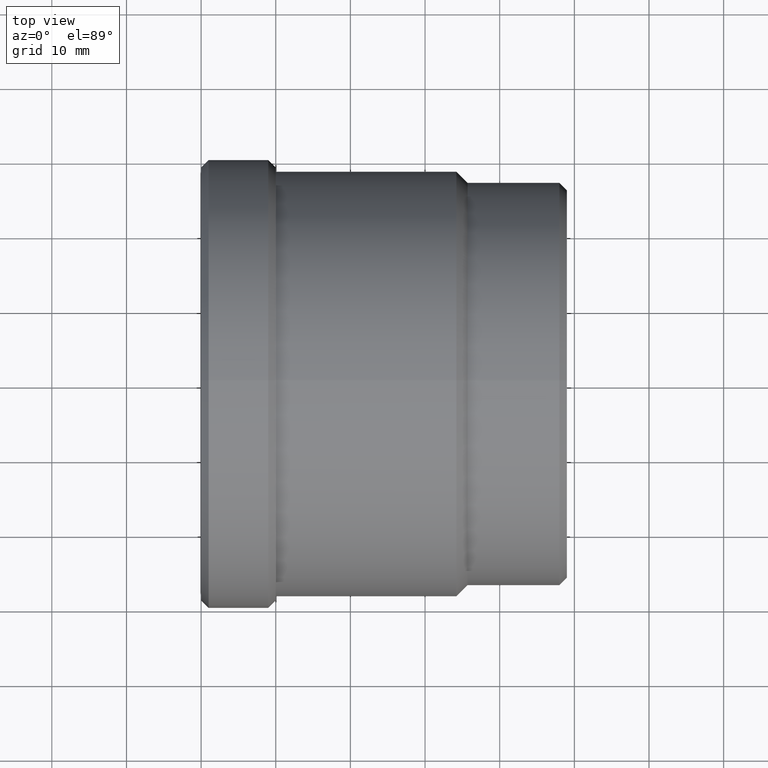
[diagram: clean part render]
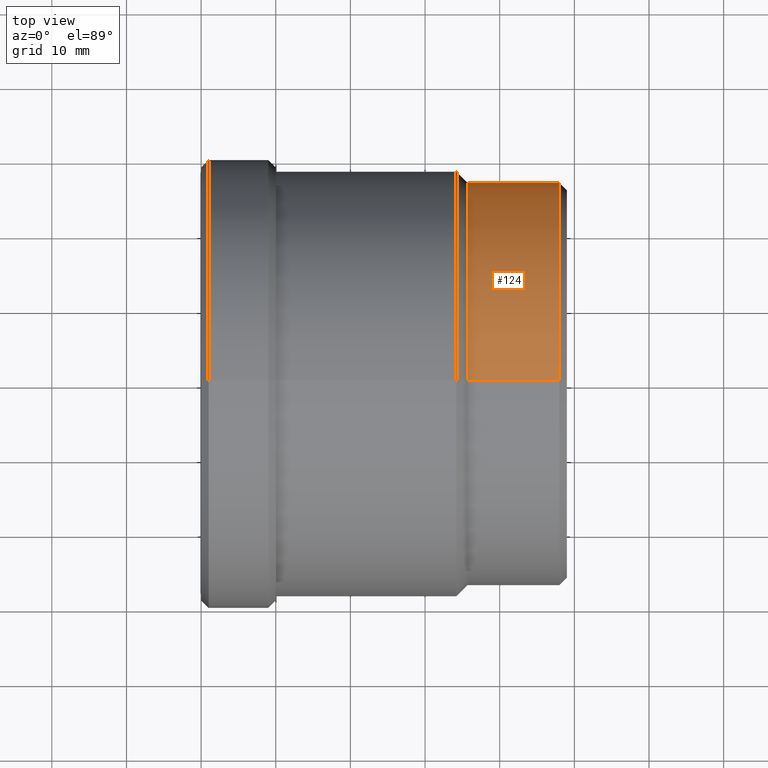
[diagram: same view with one face highlighted and labeled with its STEP entity id]
A machine part, top view. The second image highlights one B-rep face of the part: STEP entity #124.
In plain terms, the highlighted cylindrical surface (partial cylindrical patch) has radius 27 mm, axis along (-1, -0, -0).
Its self-contained STEP definition (entity closure, byte-faithful):
#2 = EDGE_LOOP ( 'NONE', ( #45, #367, #122, #79 ) ) ;
#5 = DIRECTION ( 'NONE',  ( -1.000000000000000000, -0.000000000000000000, -0.000000000000000000 ) ) ;
#45 = ORIENTED_EDGE ( 'NONE', *, *, #439, .T. ) ;
#52 = EDGE_CURVE ( 'NONE', #424, #452, #155, .T. ) ;
#57 = LINE ( 'NONE', #229, #350 ) ;
#79 = ORIENTED_EDGE ( 'NONE', *, *, #393, .F. ) ;
#85 = AXIS2_PLACEMENT_3D ( 'NONE', #294, #182, #288 ) ;
#95 = CARTESIAN_POINT ( 'NONE',  ( 35.70000000000000995, 3.306546357697854128E-15, -27.00000000000000355 ) ) ;
#96 = DIRECTION ( 'NONE',  ( -1.000000000000000000, -0.000000000000000000, -0.000000000000000000 ) ) ;
#116 = DIRECTION ( 'NONE',  ( -1.000000000000000000, -0.000000000000000000, -0.000000000000000000 ) ) ;
#122 = ORIENTED_EDGE ( 'NONE', *, *, #52, .F. ) ;
#124 = ADVANCED_FACE ( 'NONE', ( #401 ), #188, .T. ) ;
#144 = CARTESIAN_POINT ( 'NONE',  ( 47.99999999999998579, 0.000000000000000000, 27.00000000000000355 ) ) ;
#148 = VERTEX_POINT ( 'NONE', #144 ) ;
#155 = CIRCLE ( 'NONE', #312, 27.00000000000000355 ) ;
#175 = CARTESIAN_POINT ( 'NONE',  ( 35.70000000000000995, 0.000000000000000000, 0.000000000000000000 ) ) ;
#182 = DIRECTION ( 'NONE',  ( -1.000000000000000000, -0.000000000000000000, -0.000000000000000000 ) ) ;
#183 = CARTESIAN_POINT ( 'NONE',  ( 47.99999999999998579, 3.306546357697854128E-15, -27.00000000000000355 ) ) ;
#188 = CYLINDRICAL_SURFACE ( 'NONE', #85, 27.00000000000000355 ) ;
#208 = EDGE_CURVE ( 'NONE', #271, #452, #320, .T. ) ;
#229 = CARTESIAN_POINT ( 'NONE',  ( -255.8344310284800258, 0.000000000000000000, 27.00000000000000355 ) ) ;
#231 = CARTESIAN_POINT ( 'NONE',  ( 35.70000000000000995, 0.000000000000000000, 27.00000000000000355 ) ) ;
#242 = DIRECTION ( 'NONE',  ( 0.000000000000000000, 0.000000000000000000, 1.000000000000000000 ) ) ;
#244 = AXIS2_PLACEMENT_3D ( 'NONE', #388, #345, #242 ) ;
#253 = CARTESIAN_POINT ( 'NONE',  ( -255.8344310284800258, 3.306546357697854128E-15, -27.00000000000000355 ) ) ;
#271 = VERTEX_POINT ( 'NONE', #183 ) ;
#288 = DIRECTION ( 'NONE',  ( 0.000000000000000000, 0.000000000000000000, 1.000000000000000000 ) ) ;
#294 = CARTESIAN_POINT ( 'NONE',  ( -255.8344310284800258, 0.000000000000000000, 0.000000000000000000 ) ) ;
#312 = AXIS2_PLACEMENT_3D ( 'NONE', #175, #96, #354 ) ;
#317 = VECTOR ( 'NONE', #116, 1000.000000000000000 ) ;
#320 = LINE ( 'NONE', #253, #317 ) ;
#345 = DIRECTION ( 'NONE',  ( -1.000000000000000000, -0.000000000000000000, -0.000000000000000000 ) ) ;
#350 = VECTOR ( 'NONE', #5, 1000.000000000000000 ) ;
#354 = DIRECTION ( 'NONE',  ( 0.000000000000000000, 0.000000000000000000, 1.000000000000000000 ) ) ;
#367 = ORIENTED_EDGE ( 'NONE', *, *, #208, .T. ) ;
#388 = CARTESIAN_POINT ( 'NONE',  ( 47.99999999999998579, 0.000000000000000000, 0.000000000000000000 ) ) ;
#393 = EDGE_CURVE ( 'NONE', #148, #424, #57, .T. ) ;
#401 = FACE_OUTER_BOUND ( 'NONE', #2, .T. ) ;
#424 = VERTEX_POINT ( 'NONE', #231 ) ;
#439 = EDGE_CURVE ( 'NONE', #148, #271, #450, .T. ) ;
#450 = CIRCLE ( 'NONE', #244, 27.00000000000000355 ) ;
#452 = VERTEX_POINT ( 'NONE', #95 ) ;